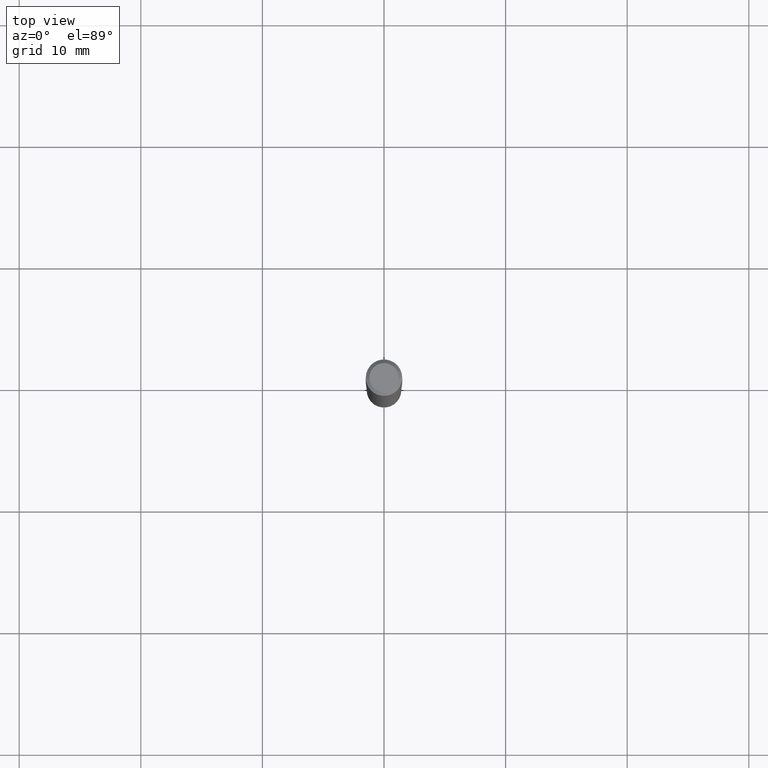
[diagram: clean part render]
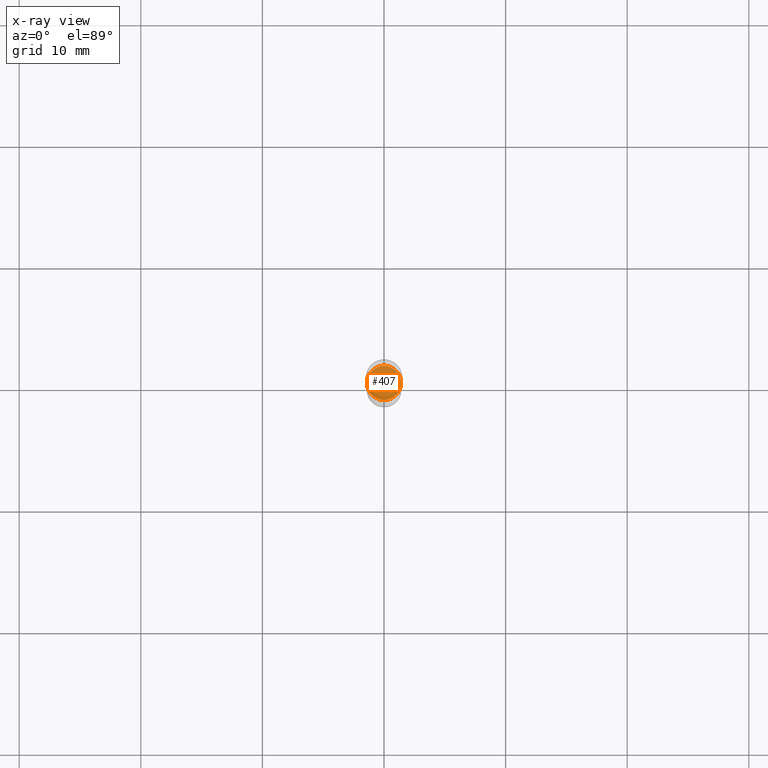
[diagram: x-ray — body ghosted, one internal face saturated and labeled with its STEP entity id]
A machine part, top view, then the same camera in x-ray: the body is ghosted and one INTERNAL B-rep face — a face not visible from any outside direction — is saturated and labeled: STEP entity #407.
In plain terms, the highlighted planar face has unit normal (-0, 0, 1).
Its self-contained STEP definition (entity closure, byte-faithful):
#5 = CARTESIAN_POINT ( 'NONE',  ( 2.426149602616273641E-29, -3.463898636266284249E-15, -0.9920999999999998709 ) ) ;
#28 = DIRECTION ( 'NONE',  ( -2.445468806185136597E-29, 3.491481338843145583E-15, 1.000000000000000000 ) ) ;
#38 = DIRECTION ( 'NONE',  ( 1.000000000000000000, -6.982962677686266711E-15, 0.000000000000000000 ) ) ;
#42 = CIRCLE ( 'NONE', #198, 0.05559999999999999665 ) ;
#54 = VERTEX_POINT ( 'NONE', #269 ) ;
#95 = VERTEX_POINT ( 'NONE', #276 ) ;
#131 = FACE_OUTER_BOUND ( 'NONE', #476, .T. ) ;
#158 = ORIENTED_EDGE ( 'NONE', *, *, #301, .F. ) ;
#162 = CIRCLE ( 'NONE', #271, 0.05559999999999999665 ) ;
#173 = DIRECTION ( 'NONE',  ( 1.000000000000000000, -6.982962677686266711E-15, 0.000000000000000000 ) ) ;
#178 = DIRECTION ( 'NONE',  ( 1.000000000000000000, -6.982962677686265922E-15, 4.876176775795935793E-29 ) ) ;
#198 = AXIS2_PLACEMENT_3D ( 'NONE', #245, #28, #173 ) ;
#213 = CARTESIAN_POINT ( 'NONE',  ( 4.128100059404114540E-29, -1.026608713141900424E-15, -0.9921000000000000929 ) ) ;
#245 = CARTESIAN_POINT ( 'NONE',  ( 2.426149602616273641E-29, -3.463898636266284249E-15, -0.9920999999999998709 ) ) ;
#269 = CARTESIAN_POINT ( 'NONE',  ( -0.05559999999999999665, -3.066187648009557861E-15, -0.9920999999999998709 ) ) ;
#271 = AXIS2_PLACEMENT_3D ( 'NONE', #5, #359, #38 ) ;
#276 = CARTESIAN_POINT ( 'NONE',  ( 0.05559999999999999665, -3.852151361145640447E-15, -0.9920999999999998709 ) ) ;
#301 = EDGE_CURVE ( 'NONE', #95, #54, #42, .T. ) ;
#309 = AXIS2_PLACEMENT_3D ( 'NONE', #213, #480, #178 ) ;
#339 = EDGE_CURVE ( 'NONE', #54, #95, #162, .T. ) ;
#359 = DIRECTION ( 'NONE',  ( -2.445468806185136597E-29, 3.491481338843145583E-15, 1.000000000000000000 ) ) ;
#407 = ADVANCED_FACE ( 'NONE', ( #131 ), #436, .F. ) ;
#426 = ORIENTED_EDGE ( 'NONE', *, *, #339, .F. ) ;
#436 = PLANE ( 'NONE',  #309 ) ;
#476 = EDGE_LOOP ( 'NONE', ( #158, #426 ) ) ;
#480 = DIRECTION ( 'NONE',  ( -2.438088387897960049E-29, 3.491481338843145188E-15, 1.000000000000000000 ) ) ;